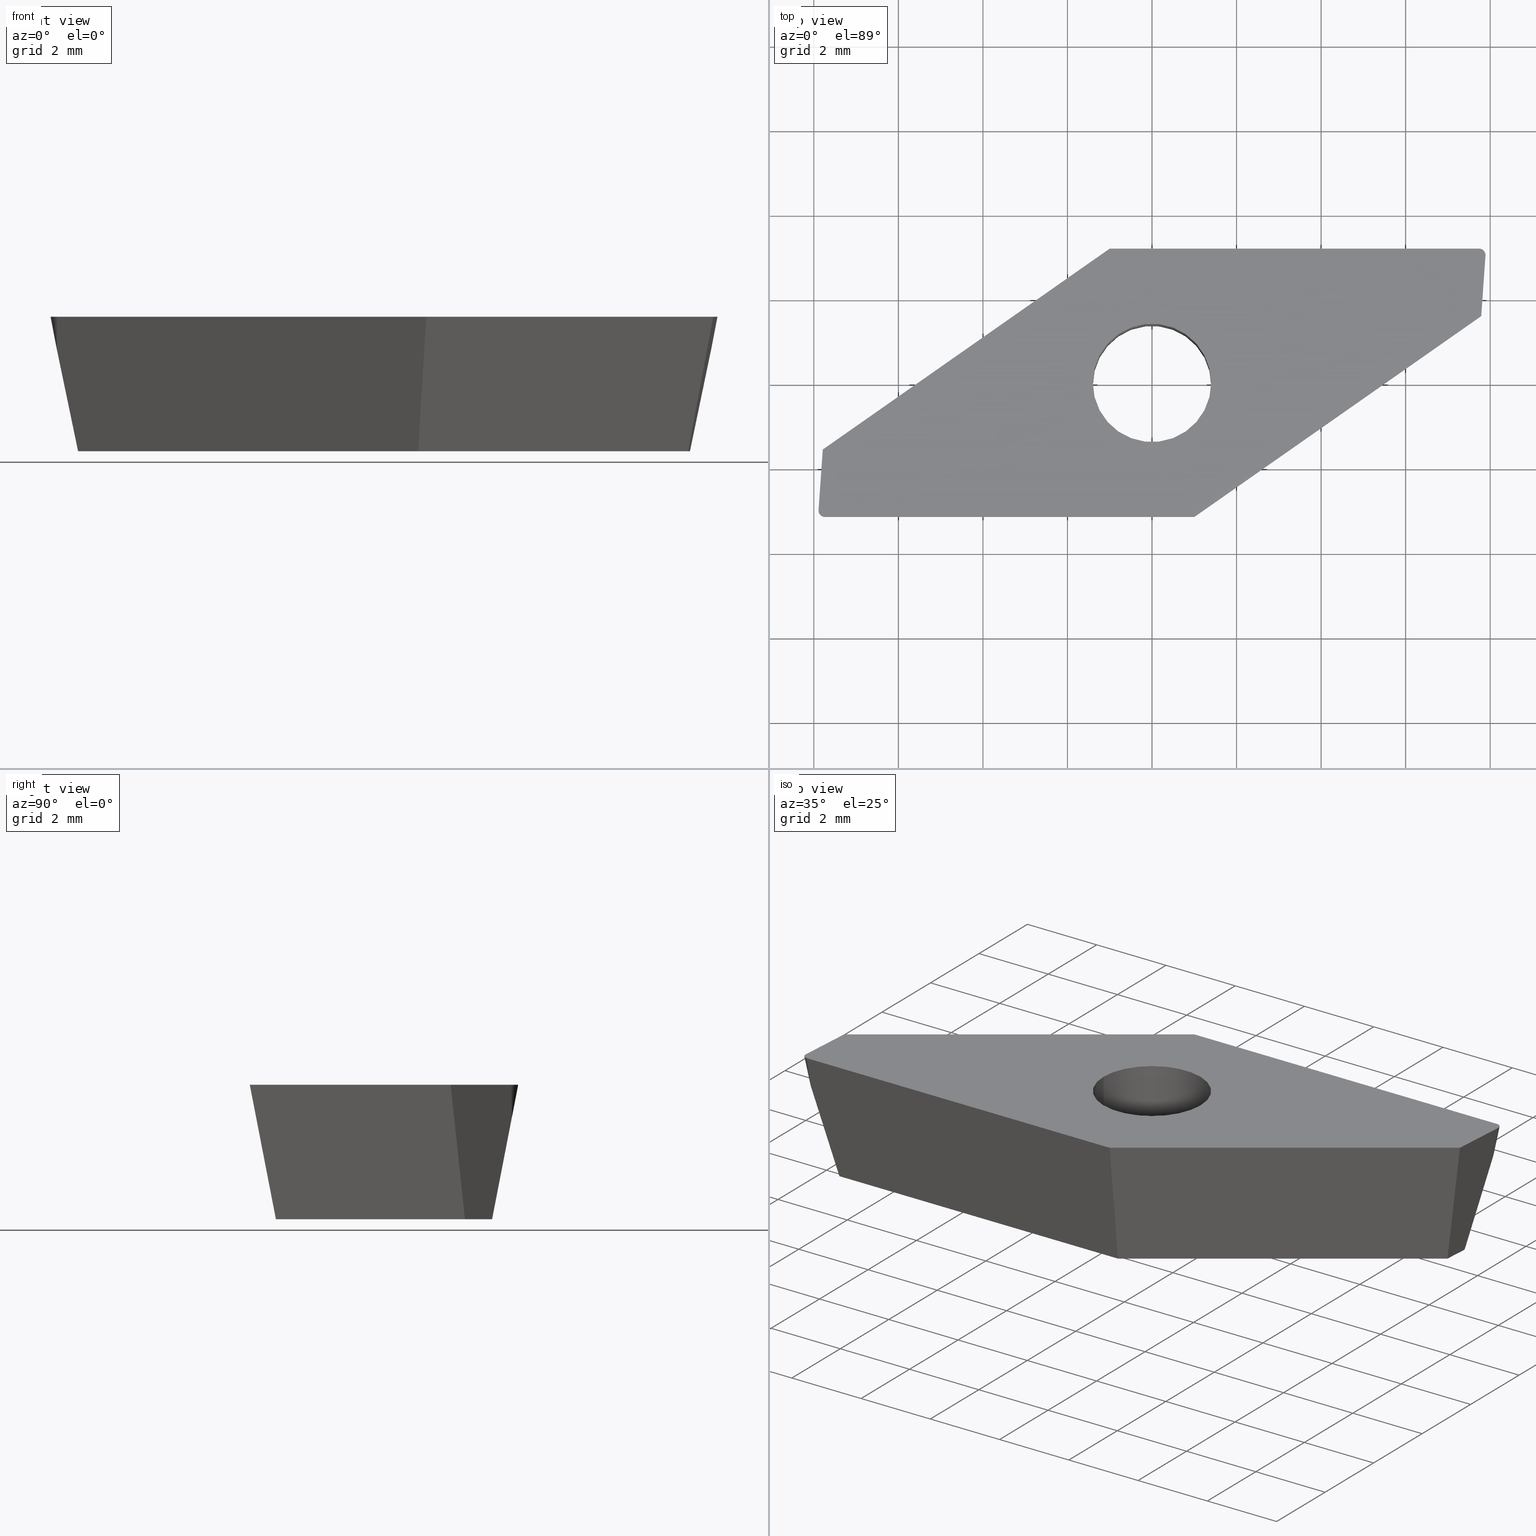
[diagram: canonical four-view strip — front | top / right | iso, engineering-drawing reading convention]
A machine part, canonical four-view strip (front | top / right | iso — engineering-drawing reading convention). The complete STEP part file that produces these views, byte-faithful:
ISO-10303-21;
HEADER;
FILE_DESCRIPTION (( 'STEP AP214' ),
    '1' );
FILE_NAME ('VP.. 1003015 .R.step',
    '2017-03-30T12:57:40',
    ( '' ),
    ( '' ),
    'SwSTEP 2.0',
    'SolidWorks 2016',
    '' );
FILE_SCHEMA (( 'AUTOMOTIVE_DESIGN' ));
ENDSEC;

DATA;
#1 = LINE ( 'NONE', #316, #15 ) ;
#2 = LINE ( 'NONE', #360, #9 ) ;
#3 = CYLINDRICAL_SURFACE ( 'NONE', #445, 1.399999999999999900 ) ;
#4 = APPLICATION_CONTEXT ( 'automotive_design' ) ;
#5 = PRODUCT_CONTEXT ( 'NONE', #34, 'mechanical' ) ;
#6 = CIRCLE ( 'NONE', #282, 0.1500000000000008300 ) ;
#7 = PRESENTATION_STYLE_ASSIGNMENT (( #46 ) ) ;
#8 = LINE ( 'NONE', #431, #12 ) ;
#9 = VECTOR ( 'NONE', #76, 1000.000000000000100 ) ;
#10 = AXIS2_PLACEMENT_3D ( 'NONE', #63, #90, #225 ) ;
#11 = DIRECTION ( 'NONE',  ( -0.0000000000000000000, -0.0000000000000000000, 1.000000000000000000 ) ) ;
#12 = VECTOR ( 'NONE', #300, 1000.000000000000000 ) ;
#13 = APPLICATION_PROTOCOL_DEFINITION ( 'draft international standard', 'automotive_design', 1998, #34 ) ;
#14 = APPLICATION_PROTOCOL_DEFINITION ( 'draft international standard', 'automotive_design', 1998, #27 ) ;
#15 = VECTOR ( 'NONE', #371, 1000.000000000000100 ) ;
#16 = FACE_OUTER_BOUND ( 'NONE', #101, .T. ) ;
#17 = ADVANCED_FACE ( 'NONE', ( #133 ), #117, .T. ) ;
#18 = PRODUCT_DEFINITION_FORMATION_WITH_SPECIFIED_SOURCE ( 'ANY', '', #284, .NOT_KNOWN. ) ;
#19 = ORIENTED_EDGE ( 'NONE', *, *, #438, .F. ) ;
#20 = FACE_OUTER_BOUND ( 'NONE', #283, .T. ) ;
#21 = EDGE_LOOP ( 'NONE', ( #260, #263, #265, #269, #271 ) ) ;
#22 = AXIS2_PLACEMENT_3D ( 'NONE', #272, #264, #262 ) ;
#23 = PLANE ( 'NONE',  #328 ) ;
#24 = UNCERTAINTY_MEASURE_WITH_UNIT (LENGTH_MEASURE( 1.000000000000000100E-005 ), #62, 'distance_accuracy_value', 'NONE');
#25 = DIRECTION ( 'NONE',  ( 0.0000000000000000000, 0.0000000000000000000, -1.000000000000000000 ) ) ;
#26 = ORIENTED_EDGE ( 'NONE', *, *, #408, .T. ) ;
#27 = APPLICATION_CONTEXT ( 'automotive_design' ) ;
#28 = PRODUCT_CONTEXT ( 'NONE', #30, 'mechanical' ) ;
#29 = APPLICATION_PROTOCOL_DEFINITION ( 'draft international standard', 'automotive_design', 1998, #30 ) ;
#30 = APPLICATION_CONTEXT ( 'automotive_design' ) ;
#31 = EDGE_CURVE ( 'NONE', #390, #176, #122, .T. ) ;
#32 = CIRCLE ( 'NONE', #10, 0.1500000000000008300 ) ;
#33 = DIRECTION ( 'NONE',  ( -0.8191520442889950200, -0.5735764363510415000, 0.0000000000000000000 ) ) ;
#34 = APPLICATION_CONTEXT ( 'automotive_design' ) ;
#35 = DIRECTION ( 'NONE',  ( 1.000000000000000000, 0.0000000000000000000, 0.0000000000000000000 ) ) ;
#36 = CIRCLE ( 'NONE', #429, 1.399999999999999900 ) ;
#37 = DIRECTION ( 'NONE',  ( 0.0000000000000000000, 0.0000000000000000000, 1.000000000000000000 ) ) ;
#38 = CARTESIAN_POINT ( 'NONE',  ( -1.399999999999999900, 1.714505518806294100E-016, -3.180000000000000200 ) ) ;
#39 = FACE_OUTER_BOUND ( 'NONE', #230, .T. ) ;
#40 = DIRECTION ( 'NONE',  ( 1.000000000000000000, 0.0000000000000000000, 0.0000000000000000000 ) ) ;
#41 = DIRECTION ( 'NONE',  ( 0.0000000000000000000, 0.0000000000000000000, 1.000000000000000000 ) ) ;
#42 = LINE ( 'NONE', #268, #119 ) ;
#43 = CARTESIAN_POINT ( 'NONE',  ( -0.8061782088420828000, 2.556870616942053400, -3.180000000000000200 ) ) ;
#44 = CARTESIAN_POINT ( 'NONE',  ( 7.739144693496298200, 3.025000000000000800, 0.0000000000000000000 ) ) ;
#45 = FILL_AREA_STYLE_COLOUR ( '', #254 ) ;
#46 = SURFACE_STYLE_USAGE ( .BOTH. , #48 ) ;
#47 = CONICAL_SURFACE ( 'NONE', #374, 0.1499999999999999700, 0.1919862177193767100 ) ;
#48 = SURFACE_SIDE_STYLE ('',( #124 ) ) ;
#49 = FACE_OUTER_BOUND ( 'NONE', #295, .T. ) ;
#50 = LINE ( 'NONE', #376, #51 ) ;
#51 = VECTOR ( 'NONE', #409, 1000.000000000000000 ) ;
#52 = CARTESIAN_POINT ( 'NONE',  ( -7.739144693496300000, -3.025000000000000800, 0.0000000000000000000 ) ) ;
#53 = FACE_BOUND ( 'NONE', #270, .T. ) ;
#54 = MANIFOLD_SOLID_BREP ( 'Schnitt-Linear austragen1', #339 ) ;
#55 = FILL_AREA_STYLE ('',( #45 ) ) ;
#56 = FACE_BOUND ( 'NONE', #222, .T. ) ;
#57 = DIRECTION ( 'NONE',  ( -0.0000000000000000000, -0.0000000000000000000, 1.000000000000000000 ) ) ;
#58 = FACE_OUTER_BOUND ( 'NONE', #404, .T. ) ;
#59 = DIRECTION ( 'NONE',  ( -0.06005326349153970700, 0.1904646183547176200, 0.9798555172570124800 ) ) ;
#60 =( NAMED_UNIT ( * ) SI_UNIT ( $, .STERADIAN. ) SOLID_ANGLE_UNIT ( ) );
#61 =( NAMED_UNIT ( * ) PLANE_ANGLE_UNIT ( ) SI_UNIT ( $, .RADIAN. ) );
#62 =( LENGTH_UNIT ( ) NAMED_UNIT ( * ) SI_UNIT ( .MILLI., .METRE. ) );
#63 = CARTESIAN_POINT ( 'NONE',  ( -7.739144693496300000, -3.025000000000000800, 0.0000000000000000000 ) ) ;
#64 = CARTESIAN_POINT ( 'NONE',  ( 7.237137390861797700, 2.556870616942054300, -3.180000000000000200 ) ) ;
#65 = VECTOR ( 'NONE', #74, 1000.000000000000000 ) ;
#66 = DIRECTION ( 'NONE',  ( 1.000000000000000000, 0.0000000000000000000, 0.0000000000000000000 ) ) ;
#67 =( NAMED_UNIT ( * ) PLANE_ANGLE_UNIT ( ) SI_UNIT ( $, .RADIAN. ) );
#68 =( LENGTH_UNIT ( ) NAMED_UNIT ( * ) SI_UNIT ( .MILLI., .METRE. ) );
#69 =( GEOMETRIC_REPRESENTATION_CONTEXT ( 3 ) GLOBAL_UNCERTAINTY_ASSIGNED_CONTEXT ( ( #354 ) ) GLOBAL_UNIT_ASSIGNED_CONTEXT ( ( #68, #67, #70 ) ) REPRESENTATION_CONTEXT ( 'NONE', 'WORKASPACE' ) );
#70 =( NAMED_UNIT ( * ) SI_UNIT ( $, .STERADIAN. ) SOLID_ANGLE_UNIT ( ) );
#71 = EDGE_CURVE ( 'NONE', #286, #121, #8, .T. ) ;
#72 = EDGE_LOOP ( 'NONE', ( #395, #183, #185 ) ) ;
#73 = DIRECTION ( 'NONE',  ( 0.0000000000000000000, 0.1908089953765452800, -0.9816271834476639800 ) ) ;
#74 = DIRECTION ( 'NONE',  ( 0.1832382521941806600, -0.1036712150141735900, 0.9775868360970839700 ) ) ;
#75 = CARTESIAN_POINT ( 'NONE',  ( 1.399999999999999900, 0.0000000000000000000, 0.0000000000000000000 ) ) ;
#76 = DIRECTION ( 'NONE',  ( 0.06005326349153969300, -0.1904646183547176200, 0.9798555172570124800 ) ) ;
#77 = CARTESIAN_POINT ( 'NONE',  ( 0.0000000000000000000, 0.0000000000000000000, 0.0000000000000000000 ) ) ;
#78 = EDGE_CURVE ( 'NONE', #137, #145, #129, .T. ) ;
#79 = ORIENTED_EDGE ( 'NONE', *, *, #199, .T. ) ;
#80 = FACE_OUTER_BOUND ( 'NONE', #21, .T. ) ;
#81 = CARTESIAN_POINT ( 'NONE',  ( 1.399999999999999900, 0.0000000000000000000, -3.180000000000000200 ) ) ;
#82 = CARTESIAN_POINT ( 'NONE',  ( 7.788289079147451100, 1.577459403657729400, 3.148184459698170000E-018 ) ) ;
#83 = DIRECTION ( 'NONE',  ( 0.0000000000000000000, 0.0000000000000000000, 1.000000000000000000 ) ) ;
#84 = ADVANCED_FACE ( 'NONE', ( #58 ), #47, .T. ) ;
#85 = CARTESIAN_POINT ( 'NONE',  ( 0.0000000000000000000, 0.0000000000000000000, 0.0000000000000000000 ) ) ;
#86 = FACE_OUTER_BOUND ( 'NONE', #267, .T. ) ;
#87 = DIRECTION ( 'NONE',  ( 1.000000000000000000, 0.0000000000000000000, 0.0000000000000000000 ) ) ;
#88 = CARTESIAN_POINT ( 'NONE',  ( 0.0000000000000000000, 0.0000000000000000000, 0.0000000000000000000 ) ) ;
#89 = FACE_OUTER_BOUND ( 'NONE', #138, .T. ) ;
#90 = DIRECTION ( 'NONE',  ( -0.0000000000000000000, -0.0000000000000000000, 1.000000000000000000 ) ) ;
#91 = STYLED_ITEM ( 'NONE', ( #7 ), #307 ) ;
#92 = CYLINDRICAL_SURFACE ( 'NONE', #402, 1.399999999999999900 ) ;
#93 = CARTESIAN_POINT ( 'NONE',  ( -7.900000000000002100, -3.175000000000000700, 0.0000000000000000000 ) ) ;
#94 = ORIENTED_EDGE ( 'NONE', *, *, #430, .F. ) ;
#95 = APPLICATION_PROTOCOL_DEFINITION ( 'draft international standard', 'automotive_design', 1998, #4 ) ;
#96 = ORIENTED_EDGE ( 'NONE', *, *, #427, .T. ) ;
#97 = ORIENTED_EDGE ( 'NONE', *, *, #434, .T. ) ;
#98 = CARTESIAN_POINT ( 'NONE',  ( 7.433744630409206500, 2.083801351424741500, -3.180000000000000200 ) ) ;
#99 = DIRECTION ( 'NONE',  ( 1.000000000000000000, 9.744461978823350000E-017, 0.0000000000000000000 ) ) ;
#100 = DIRECTION ( 'NONE',  ( 0.8191520442889952400, 0.5735764363510412700, -0.0000000000000000000 ) ) ;
#101 = EDGE_LOOP ( 'NONE', ( #79, #202, #207, #19, #209 ) ) ;
#102 = DIRECTION ( 'NONE',  ( 1.000000000000000000, 0.0000000000000000000, 0.0000000000000000000 ) ) ;
#103 = DIRECTION ( 'NONE',  ( 0.06975647374412544100, 0.9975640502598242000, -0.0000000000000000000 ) ) ;
#104 = CARTESIAN_POINT ( 'NONE',  ( -7.889144693496301200, -3.025000000000000800, 0.0000000000000000000 ) ) ;
#105 = DIRECTION ( 'NONE',  ( -0.0000000000000000000, -0.0000000000000000000, 1.000000000000000000 ) ) ;
#106 = CARTESIAN_POINT ( 'NONE',  ( 7.900000000000000400, 3.175000000000000700, 0.0000000000000000000 ) ) ;
#107 = CARTESIAN_POINT ( 'NONE',  ( 0.0000000000000000000, 0.0000000000000000000, -3.180000000000000200 ) ) ;
#108 = DIRECTION ( 'NONE',  ( 0.1903441942538345300, -0.01331016267612693300, 0.9816271834476638600 ) ) ;
#109 = CARTESIAN_POINT ( 'NONE',  ( 7.739144693496297300, 3.025000000000000800, -0.7716831023955452700 ) ) ;
#110 = AXIS2_PLACEMENT_3D ( 'NONE', #85, #83, #66 ) ;
#111 = DIRECTION ( 'NONE',  ( 1.000000000000000000, 0.0000000000000000000, 0.0000000000000000000 ) ) ;
#112 = EDGE_CURVE ( 'NONE', #357, #140, #50, .T. ) ;
#113 = ADVANCED_FACE ( 'NONE', ( #56, #49 ), #349, .F. ) ;
#114 = PRESENTATION_STYLE_ASSIGNMENT (( #416 ) ) ;
#115 = CARTESIAN_POINT ( 'NONE',  ( 7.788289079147451100, 1.577459403657729400, 0.0000000000000000000 ) ) ;
#116 = DIRECTION ( 'NONE',  ( -0.8191520442889951300, -0.5735764363510415000, -0.0000000000000000000 ) ) ;
#117 = CONICAL_SURFACE ( 'NONE', #340, 0.1500000000000008300, 0.1919862177193767100 ) ;
#118 = AXIS2_PLACEMENT_3D ( 'NONE', #88, #37, #35 ) ;
#119 = VECTOR ( 'NONE', #152, 1000.000000000000100 ) ;
#120 = DIRECTION ( 'NONE',  ( 0.0000000000000000000, 0.1908089953765452800, 0.9816271834476639800 ) ) ;
#121 = VERTEX_POINT ( 'NONE', #422 ) ;
#122 = LINE ( 'NONE', #98, #128 ) ;
#123 = PLANE ( 'NONE',  #403 ) ;
#124 = SURFACE_STYLE_FILL_AREA ( #55 ) ;
#125 = DIRECTION ( 'NONE',  ( 0.0000000000000000000, 0.0000000000000000000, 1.000000000000000000 ) ) ;
#126 = CARTESIAN_POINT ( 'NONE',  ( 1.001073654690762600, -2.556870616942053400, -3.180000000000000200 ) ) ;
#127 = DIRECTION ( 'NONE',  ( -1.000000000000000000, -9.744461978823348800E-017, -0.0000000000000000000 ) ) ;
#128 = VECTOR ( 'NONE', #330, 1000.000000000000000 ) ;
#129 = CIRCLE ( 'NONE', #353, 1.399999999999999900 ) ;
#130 = DIRECTION ( 'NONE',  ( 1.000000000000000000, 0.0000000000000000000, 0.0000000000000000000 ) ) ;
#131 = SURFACE_STYLE_FILL_AREA ( #392 ) ;
#132 = CARTESIAN_POINT ( 'NONE',  ( 0.0000000000000000000, 0.0000000000000000000, -3.180000000000000200 ) ) ;
#133 = FACE_OUTER_BOUND ( 'NONE', #72, .T. ) ;
#134 = DIRECTION ( 'NONE',  ( -0.0000000000000000000, -0.0000000000000000000, 1.000000000000000000 ) ) ;
#135 = DIRECTION ( 'NONE',  ( -0.1832382521941805800, 0.1036712150141736000, 0.9775868360970839700 ) ) ;
#136 = CARTESIAN_POINT ( 'NONE',  ( -7.739144693496299100, -3.025000000000000800, -0.7716831023955449400 ) ) ;
#137 = VERTEX_POINT ( 'NONE', #213 ) ;
#138 = EDGE_LOOP ( 'NONE', ( #331, #320, #342 ) ) ;
#139 = DIRECTION ( 'NONE',  ( 1.859331000664225100E-017, -0.1908089953765452500, -0.9816271834476638600 ) ) ;
#140 = VERTEX_POINT ( 'NONE', #43 ) ;
#141 = CARTESIAN_POINT ( 'NONE',  ( 7.739144693496298200, 3.175000000000000700, 5.764875297616103600E-018 ) ) ;
#142 = DIRECTION ( 'NONE',  ( -0.9792359889651950400, 0.06847485084868740200, -0.1908089953765452800 ) ) ;
#143 = DIRECTION ( 'NONE',  ( -0.5630382217072211800, 0.8041019140508022200, -0.1908089953765452500 ) ) ;
#144 = DIRECTION ( 'NONE',  ( 0.0000000000000000000, 0.0000000000000000000, -1.000000000000000000 ) ) ;
#145 = VERTEX_POINT ( 'NONE', #75 ) ;
#146 = CARTESIAN_POINT ( 'NONE',  ( 0.0000000000000000000, 0.0000000000000000000, -3.180000000000000200 ) ) ;
#147 = PRODUCT_RELATED_PRODUCT_CATEGORY ( 'part', '', ( #284 ) ) ;
#148 = CARTESIAN_POINT ( 'NONE',  ( 0.0000000000000000000, 0.0000000000000000000, 0.0000000000000000000 ) ) ;
#149 = CARTESIAN_POINT ( 'NONE',  ( -7.433744630409207400, -2.083801351424743800, -3.180000000000000200 ) ) ;
#150 = ADVANCED_FACE ( 'NONE', ( #20 ), #293, .T. ) ;
#151 = CARTESIAN_POINT ( 'NONE',  ( -1.001073654690764600, 3.174999999999999800, 0.0000000000000000000 ) ) ;
#152 = DIRECTION ( 'NONE',  ( -0.06975647374412608000, -0.9975640502598242000, 0.0000000000000000000 ) ) ;
#153 = ADVANCED_FACE ( 'NONE', ( #53, #39 ), #327, .T. ) ;
#154 = CARTESIAN_POINT ( 'NONE',  ( 7.788289079147451100, 1.577459403657729400, 0.0000000000000000000 ) ) ;
#155 = DIRECTION ( 'NONE',  ( -9.565428766485213700E-017, 0.9816271834476639800, -0.1908089953765452800 ) ) ;
#156 = PLANE ( 'NONE',  #171 ) ;
#157 = AXIS2_PLACEMENT_3D ( 'NONE', #52, #388, #291 ) ;
#158 = CARTESIAN_POINT ( 'NONE',  ( -7.900000000000002100, -3.175000000000000700, 0.0000000000000000000 ) ) ;
#159 = DIRECTION ( 'NONE',  ( -0.8191520442889950200, -0.5735764363510415000, 0.0000000000000000000 ) ) ;
#160 = CIRCLE ( 'NONE', #110, 1.399999999999999900 ) ;
#161 = VERTEX_POINT ( 'NONE', #38 ) ;
#162 = EDGE_CURVE ( 'NONE', #180, #161, #36, .T. ) ;
#163 = FACE_OUTER_BOUND ( 'NONE', #174, .T. ) ;
#164 = AXIS2_PLACEMENT_3D ( 'NONE', #77, #41, #40 ) ;
#165 = CARTESIAN_POINT ( 'NONE',  ( 7.888779301035271800, 3.014536528938381600, -1.291725244562808000E-016 ) ) ;
#166 = CARTESIAN_POINT ( 'NONE',  ( 7.788289079147451100, 1.577459403657729400, 0.0000000000000000000 ) ) ;
#167 = DIRECTION ( 'NONE',  ( -0.06975647374412606600, -0.9975640502598242000, -0.0000000000000000000 ) ) ;
#168 = CARTESIAN_POINT ( 'NONE',  ( 0.0000000000000000000, 0.0000000000000000000, -3.180000000000000200 ) ) ;
#169 = DIRECTION ( 'NONE',  ( 0.8191520442889951300, 0.5735764363510412700, 0.0000000000000000000 ) ) ;
#170 = DIRECTION ( 'NONE',  ( 0.5630382217072209500, -0.8041019140508023400, -0.1908089953765452500 ) ) ;
#171 = AXIS2_PLACEMENT_3D ( 'NONE', #166, #170, #169 ) ;
#172 = CARTESIAN_POINT ( 'NONE',  ( -1.001073654690764600, 3.174999999999999800, 0.0000000000000000000 ) ) ;
#173 = CARTESIAN_POINT ( 'NONE',  ( 1.399999999999999900, 0.0000000000000000000, -3.180000000000000200 ) ) ;
#174 = EDGE_LOOP ( 'NONE', ( #336, #358, #366, #378 ) ) ;
#175 = EDGE_CURVE ( 'NONE', #299, #286, #32, .T. ) ;
#176 = VERTEX_POINT ( 'NONE', #192 ) ;
#177 = EDGE_LOOP ( 'NONE', ( #253, #256, #258, #259 ) ) ;
#178 = ADVANCED_FACE ( 'NONE', ( #80 ), #23, .T. ) ;
#179 = ADVANCED_FACE ( 'NONE', ( #16 ), #198, .T. ) ;
#180 = VERTEX_POINT ( 'NONE', #81 ) ;
#181 = DIRECTION ( 'NONE',  ( -0.1912579077465619300, 0.0000000000000000000, -0.9815398171874677400 ) ) ;
#182 = DIRECTION ( 'NONE',  ( 0.9792359889651950400, -0.06847485084868677700, -0.1908089953765452500 ) ) ;
#183 = ORIENTED_EDGE ( 'NONE', *, *, #344, .T. ) ;
#184 = ORIENTED_EDGE ( 'NONE', *, *, #398, .F. ) ;
#185 = ORIENTED_EDGE ( 'NONE', *, *, #243, .F. ) ;
#186 = PRODUCT_DEFINITION_SHAPE ( 'NONE', 'NONE',  #441 ) ;
#187 = LINE ( 'NONE', #82, #65 ) ;
#188 = CARTESIAN_POINT ( 'NONE',  ( -7.788289079147451900, -1.577459403657731600, 0.0000000000000000000 ) ) ;
#189 = CARTESIAN_POINT ( 'NONE',  ( 7.900000000000000400, 3.175000000000000700, 0.0000000000000000000 ) ) ;
#190 = VECTOR ( 'NONE', #103, 1000.000000000000200 ) ;
#191 = PLANE ( 'NONE',  #364 ) ;
#192 = CARTESIAN_POINT ( 'NONE',  ( 7.192231910145610000, 1.914692324122640600, -3.180000000000000200 ) ) ;
#193 = DIRECTION ( 'NONE',  ( 0.2004640746510997800, 0.1869357738407769500, 0.9617011860410842300 ) ) ;
#194 = DIRECTION ( 'NONE',  ( 0.0000000000000000000, 0.0000000000000000000, 1.000000000000000000 ) ) ;
#195 = CARTESIAN_POINT ( 'NONE',  ( -7.739144693496300000, -3.025000000000000800, 0.0000000000000000000 ) ) ;
#196 = DIRECTION ( 'NONE',  ( -1.000000000000000000, 0.0000000000000000000, 0.0000000000000000000 ) ) ;
#197 = CARTESIAN_POINT ( 'NONE',  ( -7.192231910145610900, -1.914692324122642800, -3.180000000000000200 ) ) ;
#198 = PLANE ( 'NONE',  #444 ) ;
#199 = EDGE_CURVE ( 'NONE', #326, #241, #42, .T. ) ;
#200 = DIRECTION ( 'NONE',  ( 0.06975647374412545500, 0.9975640502598242000, 0.0000000000000000000 ) ) ;
#201 = CARTESIAN_POINT ( 'NONE',  ( -1.001073654690764600, 3.174999999999999800, 0.0000000000000000000 ) ) ;
#202 = ORIENTED_EDGE ( 'NONE', *, *, #414, .T. ) ;
#203 = ADVANCED_FACE ( 'NONE', ( #86 ), #3, .F. ) ;
#204 = CARTESIAN_POINT ( 'NONE',  ( -7.888779301035273600, -3.014536528938381600, 0.0000000000000000000 ) ) ;
#205 = ADVANCED_FACE ( 'NONE', ( #89 ), #436, .T. ) ;
#206 = DIRECTION ( 'NONE',  ( -1.000000000000000000, -1.734723475976797600E-014, 0.0000000000000000000 ) ) ;
#207 = ORIENTED_EDGE ( 'NONE', *, *, #236, .T. ) ;
#208 = DIRECTION ( 'NONE',  ( -1.000000000000000000, 0.0000000000000000000, -0.0000000000000000000 ) ) ;
#209 = ORIENTED_EDGE ( 'NONE', *, *, #427, .F. ) ;
#210 = PRESENTATION_LAYER_ASSIGNMENT (  '', '', ( #91 ) ) ;
#211 = SHAPE_DEFINITION_REPRESENTATION ( #381, #307 ) ;
#212 = ORIENTED_EDGE ( 'NONE', *, *, #323, .F. ) ;
#213 = CARTESIAN_POINT ( 'NONE',  ( -1.399999999999999900, 1.714505518806294100E-016, 0.0000000000000000000 ) ) ;
#214 = CARTESIAN_POINT ( 'NONE',  ( 0.8061782088420801400, -2.556870616942053400, -3.180000000000000200 ) ) ;
#215 = PRODUCT_DEFINITION_FORMATION_WITH_SPECIFIED_SOURCE ( 'ANY', '', #442, .NOT_KNOWN. ) ;
#216 = EDGE_LOOP ( 'NONE', ( #242, #246, #247, #249, #250 ) ) ;
#217 = UNCERTAINTY_MEASURE_WITH_UNIT (LENGTH_MEASURE( 1.000000000000000100E-005 ), #410, 'distance_accuracy_value', 'NONE');
#218 = CARTESIAN_POINT ( 'NONE',  ( -7.739144693496300900, -3.175000000000000700, 5.764875297616103600E-018 ) ) ;
#219 = ORIENTED_EDGE ( 'NONE', *, *, #78, .T. ) ;
#220 = ORIENTED_EDGE ( 'NONE', *, *, #319, .F. ) ;
#221 = DIRECTION ( 'NONE',  ( -1.859331000664225100E-017, 0.1908089953765452500, -0.9816271834476638600 ) ) ;
#222 = EDGE_LOOP ( 'NONE', ( #303, #304 ) ) ;
#223 = DIRECTION ( 'NONE',  ( 9.565428766485213700E-017, -0.9816271834476639800, -0.1908089953765452800 ) ) ;
#224 = VECTOR ( 'NONE', #108, 1000.000000000000100 ) ;
#225 = DIRECTION ( 'NONE',  ( -1.000000000000000000, 0.0000000000000000000, 0.0000000000000000000 ) ) ;
#226 = CARTESIAN_POINT ( 'NONE',  ( 7.283376349052109500, 3.218118526079754900, -3.180000000000000200 ) ) ;
#227 = AXIS2_PLACEMENT_3D ( 'NONE', #44, #285, #281 ) ;
#228 = LINE ( 'NONE', #106, #190 ) ;
#229 = DIRECTION ( 'NONE',  ( -0.1908089953765452800, 0.0000000000000000000, 0.9816271834476639800 ) ) ;
#230 = EDGE_LOOP ( 'NONE', ( #278, #288, #290, #292, #298, #301 ) ) ;
#231 = DIRECTION ( 'NONE',  ( -0.2004640746510998900, -0.1869357738407769500, 0.9617011860410842300 ) ) ;
#232 = VERTEX_POINT ( 'NONE', #318 ) ;
#233 = ORIENTED_EDGE ( 'NONE', *, *, #424, .T. ) ;
#234 = EDGE_CURVE ( 'NONE', #390, #121, #2, .T. ) ;
#235 = ORIENTED_EDGE ( 'NONE', *, *, #420, .F. ) ;
#236 = EDGE_CURVE ( 'NONE', #322, #372, #1, .T. ) ;
#237 = ORIENTED_EDGE ( 'NONE', *, *, #112, .T. ) ;
#238 = LINE ( 'NONE', #126, #276 ) ;
#239 = CARTESIAN_POINT ( 'NONE',  ( -7.900000000000002100, -3.175000000000000700, 0.0000000000000000000 ) ) ;
#240 = ORIENTED_EDGE ( 'NONE', *, *, #319, .T. ) ;
#241 = VERTEX_POINT ( 'NONE', #401 ) ;
#242 = ORIENTED_EDGE ( 'NONE', *, *, #418, .T. ) ;
#243 = EDGE_CURVE ( 'NONE', #372, #299, #6, .T. ) ;
#244 = ORIENTED_EDGE ( 'NONE', *, *, #428, .F. ) ;
#245 = DIRECTION ( 'NONE',  ( -0.0000000000000000000, -0.0000000000000000000, 1.000000000000000000 ) ) ;
#246 = ORIENTED_EDGE ( 'NONE', *, *, #420, .T. ) ;
#247 = ORIENTED_EDGE ( 'NONE', *, *, #443, .T. ) ;
#248 = FILL_AREA_STYLE_COLOUR ( '', #350 ) ;
#249 = ORIENTED_EDGE ( 'NONE', *, *, #446, .F. ) ;
#250 = ORIENTED_EDGE ( 'NONE', *, *, #449, .F. ) ;
#251 = FACE_OUTER_BOUND ( 'NONE', #177, .T. ) ;
#252 = AXIS2_PLACEMENT_3D ( 'NONE', #297, #143, #33 ) ;
#253 = ORIENTED_EDGE ( 'NONE', *, *, #399, .F. ) ;
#254 = COLOUR_RGB ( '',0.7960784313725489700, 0.8235294117647058400, 0.9372549019607843100 ) ;
#255 = CARTESIAN_POINT ( 'NONE',  ( -1.399999999999999900, 1.714505518806294100E-016, -3.180000000000000200 ) ) ;
#256 = ORIENTED_EDGE ( 'NONE', *, *, #234, .F. ) ;
#257 = CARTESIAN_POINT ( 'NONE',  ( 7.739144693496298200, 3.175000000000000700, 0.0000000000000000000 ) ) ;
#258 = ORIENTED_EDGE ( 'NONE', *, *, #31, .T. ) ;
#259 = ORIENTED_EDGE ( 'NONE', *, *, #449, .T. ) ;
#260 = ORIENTED_EDGE ( 'NONE', *, *, #71, .F. ) ;
#261 = VERTEX_POINT ( 'NONE', #305 ) ;
#262 = DIRECTION ( 'NONE',  ( 1.000000000000000000, 0.0000000000000000000, 0.0000000000000000000 ) ) ;
#263 = ORIENTED_EDGE ( 'NONE', *, *, #389, .T. ) ;
#264 = DIRECTION ( 'NONE',  ( 0.0000000000000000000, 0.0000000000000000000, 1.000000000000000000 ) ) ;
#265 = ORIENTED_EDGE ( 'NONE', *, *, #414, .F. ) ;
#266 = VECTOR ( 'NONE', #167, 1000.000000000000000 ) ;
#267 = EDGE_LOOP ( 'NONE', ( #184, #26, #219, #244 ) ) ;
#268 = CARTESIAN_POINT ( 'NONE',  ( -7.283376349052111300, -3.218118526079755300, -3.180000000000000200 ) ) ;
#269 = ORIENTED_EDGE ( 'NONE', *, *, #440, .T. ) ;
#270 = EDGE_LOOP ( 'NONE', ( #274, #275 ) ) ;
#271 = ORIENTED_EDGE ( 'NONE', *, *, #234, .T. ) ;
#272 = CARTESIAN_POINT ( 'NONE',  ( 0.0000000000000000000, 0.0000000000000000000, -3.180000000000000200 ) ) ;
#273 = CARTESIAN_POINT ( 'NONE',  ( 7.900000000000000400, 3.175000000000000700, 0.0000000000000000000 ) ) ;
#274 = ORIENTED_EDGE ( 'NONE', *, *, #162, .T. ) ;
#275 = ORIENTED_EDGE ( 'NONE', *, *, #398, .T. ) ;
#276 = VECTOR ( 'NONE', #99, 1000.000000000000000 ) ;
#277 = VECTOR ( 'NONE', #159, 1000.000000000000000 ) ;
#278 = ORIENTED_EDGE ( 'NONE', *, *, #112, .F. ) ;
#279 = LINE ( 'NONE', #158, #266 ) ;
#280 = VECTOR ( 'NONE', #127, 1000.000000000000000 ) ;
#281 = DIRECTION ( 'NONE',  ( -1.000000000000000000, 0.0000000000000000000, 0.0000000000000000000 ) ) ;
#282 = AXIS2_PLACEMENT_3D ( 'NONE', #195, #437, #206 ) ;
#283 = EDGE_LOOP ( 'NONE', ( #212, #220, #97, #96 ) ) ;
#284 = PRODUCT ( 'VP.. 1003015 .R', 'VP.. 1003015 .R', '', ( #28 ) ) ;
#285 = DIRECTION ( 'NONE',  ( -0.0000000000000000000, -0.0000000000000000000, 1.000000000000000000 ) ) ;
#286 = VERTEX_POINT ( 'NONE', #400 ) ;
#287 = SURFACE_SIDE_STYLE ('',( #131 ) ) ;
#288 = ORIENTED_EDGE ( 'NONE', *, *, #418, .F. ) ;
#289 = LINE ( 'NONE', #149, #277 ) ;
#290 = ORIENTED_EDGE ( 'NONE', *, *, #31, .F. ) ;
#291 = DIRECTION ( 'NONE',  ( -1.000000000000000000, 0.0000000000000000000, 0.0000000000000000000 ) ) ;
#292 = ORIENTED_EDGE ( 'NONE', *, *, #440, .F. ) ;
#293 = PLANE ( 'NONE',  #252 ) ;
#294 = STYLED_ITEM ( 'NONE', ( #114 ), #54 ) ;
#295 = EDGE_LOOP ( 'NONE', ( #306, #308, #309, #310, #312, #314, #348, #352, #333 ) ) ;
#296 = VECTOR ( 'NONE', #134, 1000.000000000000000 ) ;
#297 = CARTESIAN_POINT ( 'NONE',  ( -7.788289079147451900, -1.577459403657731600, 0.0000000000000000000 ) ) ;
#298 = ORIENTED_EDGE ( 'NONE', *, *, #199, .F. ) ;
#299 = VERTEX_POINT ( 'NONE', #335 ) ;
#300 = DIRECTION ( 'NONE',  ( 1.000000000000000000, 9.744461978823348800E-017, -0.0000000000000000000 ) ) ;
#301 = ORIENTED_EDGE ( 'NONE', *, *, #434, .F. ) ;
#302 = LINE ( 'NONE', #165, #224 ) ;
#303 = ORIENTED_EDGE ( 'NONE', *, *, #448, .F. ) ;
#304 = ORIENTED_EDGE ( 'NONE', *, *, #78, .F. ) ;
#305 = CARTESIAN_POINT ( 'NONE',  ( -7.788289079147451900, -1.577459403657731600, 0.0000000000000000000 ) ) ;
#306 = ORIENTED_EDGE ( 'NONE', *, *, #446, .T. ) ;
#307 = ADVANCED_BREP_SHAPE_REPRESENTATION ( 'VP.. 1003015 .R', ( #54, #164 ), #69 ) ;
#308 = ORIENTED_EDGE ( 'NONE', *, *, #391, .T. ) ;
#309 = ORIENTED_EDGE ( 'NONE', *, *, #430, .T. ) ;
#310 = ORIENTED_EDGE ( 'NONE', *, *, #323, .T. ) ;
#311 = VECTOR ( 'NONE', #135, 1000.000000000000100 ) ;
#312 = ORIENTED_EDGE ( 'NONE', *, *, #438, .T. ) ;
#313 = LINE ( 'NONE', #172, #280 ) ;
#314 = ORIENTED_EDGE ( 'NONE', *, *, #243, .T. ) ;
#315 = CARTESIAN_POINT ( 'NONE',  ( -1.001073654690764600, 3.174999999999999800, 0.0000000000000000000 ) ) ;
#316 = CARTESIAN_POINT ( 'NONE',  ( -7.888779301035273600, -3.014536528938381600, -9.275010772434588700E-017 ) ) ;
#317 = VERTEX_POINT ( 'NONE', #315 ) ;
#318 = CARTESIAN_POINT ( 'NONE',  ( 7.888779301035271800, 3.014536528938381600, 0.0000000000000000000 ) ) ;
#319 = EDGE_CURVE ( 'NONE', #140, #317, #433, .T. ) ;
#320 = ORIENTED_EDGE ( 'NONE', *, *, #389, .F. ) ;
#321 = EDGE_LOOP ( 'NONE', ( #94, #233, #235, #237, #240 ) ) ;
#322 = VERTEX_POINT ( 'NONE', #136 ) ;
#323 = EDGE_CURVE ( 'NONE', #317, #261, #407, .T. ) ;
#324 = LINE ( 'NONE', #141, #345 ) ;
#325 = FACE_OUTER_BOUND ( 'NONE', #216, .T. ) ;
#326 = VERTEX_POINT ( 'NONE', #197 ) ;
#327 = PLANE ( 'NONE',  #435 ) ;
#328 = AXIS2_PLACEMENT_3D ( 'NONE', #426, #223, #73 ) ;
#329 = LINE ( 'NONE', #173, #296 ) ;
#330 = DIRECTION ( 'NONE',  ( 0.8191520442889951300, 0.5735764363510412700, 0.0000000000000000000 ) ) ;
#331 = ORIENTED_EDGE ( 'NONE', *, *, #344, .F. ) ;
#332 = VERTEX_POINT ( 'NONE', #115 ) ;
#333 = ORIENTED_EDGE ( 'NONE', *, *, #399, .T. ) ;
#334 = ORIENTED_EDGE ( 'NONE', *, *, #443, .F. ) ;
#335 = CARTESIAN_POINT ( 'NONE',  ( -7.889144693496301200, -3.025000000000000800, 0.0000000000000000000 ) ) ;
#336 = ORIENTED_EDGE ( 'NONE', *, *, #408, .F. ) ;
#337 = ORIENTED_EDGE ( 'NONE', *, *, #424, .F. ) ;
#338 = ORIENTED_EDGE ( 'NONE', *, *, #391, .F. ) ;
#339 = CLOSED_SHELL ( 'NONE', ( #203, #17, #179, #150, #380, #421, #439, #178, #153, #113, #84, #205, #447 ) ) ;
#340 = AXIS2_PLACEMENT_3D ( 'NONE', #413, #11, #412 ) ;
#341 = VECTOR ( 'NONE', #193, 1000.000000000000100 ) ;
#342 = ORIENTED_EDGE ( 'NONE', *, *, #175, .F. ) ;
#343 = VERTEX_POINT ( 'NONE', #109 ) ;
#344 = EDGE_CURVE ( 'NONE', #322, #299, #417, .T. ) ;
#345 = VECTOR ( 'NONE', #139, 1000.000000000000100 ) ;
#346 = MECHANICAL_DESIGN_GEOMETRIC_PRESENTATION_REPRESENTATION (  '', ( #91 ), #385 ) ;
#347 = VECTOR ( 'NONE', #200, 1000.000000000000100 ) ;
#348 = ORIENTED_EDGE ( 'NONE', *, *, #175, .T. ) ;
#349 = PLANE ( 'NONE',  #450 ) ;
#350 = COLOUR_RGB ( '',0.7960784313725489700, 0.8235294117647058400, 0.9372549019607843100 ) ;
#351 = PRODUCT_RELATED_PRODUCT_CATEGORY ( 'part', '', ( #442 ) ) ;
#352 = ORIENTED_EDGE ( 'NONE', *, *, #71, .T. ) ;
#353 = AXIS2_PLACEMENT_3D ( 'NONE', #423, #194, #87 ) ;
#354 = UNCERTAINTY_MEASURE_WITH_UNIT (LENGTH_MEASURE( 1.000000000000000100E-005 ), #68, 'distance_accuracy_value', 'NONE');
#355 = CARTESIAN_POINT ( 'NONE',  ( -7.788289079147451900, -1.577459403657731600, 0.0000000000000000000 ) ) ;
#356 = DIRECTION ( 'NONE',  ( -0.1912579077465619300, 0.0000000000000000000, 0.9815398171874677400 ) ) ;
#357 = VERTEX_POINT ( 'NONE', #64 ) ;
#358 = ORIENTED_EDGE ( 'NONE', *, *, #162, .F. ) ;
#359 = LINE ( 'NONE', #188, #311 ) ;
#360 = CARTESIAN_POINT ( 'NONE',  ( 1.001073654690761700, -3.174999999999999800, 4.532429341667184100E-017 ) ) ;
#361 = VERTEX_POINT ( 'NONE', #257 ) ;
#362 = VECTOR ( 'NONE', #231, 1000.000000000000100 ) ;
#363 = CARTESIAN_POINT ( 'NONE',  ( 7.739144693496298200, 3.025000000000000800, 0.0000000000000000000 ) ) ;
#364 = AXIS2_PLACEMENT_3D ( 'NONE', #189, #182, #181 ) ;
#365 = LINE ( 'NONE', #226, #347 ) ;
#366 = ORIENTED_EDGE ( 'NONE', *, *, #428, .T. ) ;
#367 = VECTOR ( 'NONE', #245, 1000.000000000000000 ) ;
#368 = LINE ( 'NONE', #239, #362 ) ;
#369 = PRODUCT_DEFINITION_CONTEXT ( 'detailed design', #4, 'design' ) ;
#370 =( GEOMETRIC_REPRESENTATION_CONTEXT ( 3 ) GLOBAL_UNCERTAINTY_ASSIGNED_CONTEXT ( ( #217 ) ) GLOBAL_UNIT_ASSIGNED_CONTEXT ( ( #410, #406, #397 ) ) REPRESENTATION_CONTEXT ( 'NONE', 'WORKASPACE' ) );
#371 = DIRECTION ( 'NONE',  ( -0.1903441942538345300, 0.01331016267612705400, 0.9816271834476638600 ) ) ;
#372 = VERTEX_POINT ( 'NONE', #204 ) ;
#373 = DIRECTION ( 'NONE',  ( -1.000000000000000000, 0.0000000000000000000, -0.0000000000000000000 ) ) ;
#374 = AXIS2_PLACEMENT_3D ( 'NONE', #363, #394, #196 ) ;
#375 = VECTOR ( 'NONE', #100, 1000.000000000000100 ) ;
#376 = CARTESIAN_POINT ( 'NONE',  ( -1.001073654690764600, 2.556870616942053400, -3.180000000000000200 ) ) ;
#377 = LINE ( 'NONE', #255, #367 ) ;
#378 = ORIENTED_EDGE ( 'NONE', *, *, #448, .T. ) ;
#379 = CIRCLE ( 'NONE', #227, 0.1499999999999999700 ) ;
#380 = ADVANCED_FACE ( 'NONE', ( #432 ), #123, .T. ) ;
#381 = PRODUCT_DEFINITION_SHAPE ( 'NONE', 'NONE',  #419 ) ;
#382 = LINE ( 'NONE', #273, #341 ) ;
#383 = LINE ( 'NONE', #218, #405 ) ;
#384 = MECHANICAL_DESIGN_GEOMETRIC_PRESENTATION_REPRESENTATION (  '', ( #294 ), #370 ) ;
#385 =( GEOMETRIC_REPRESENTATION_CONTEXT ( 3 ) GLOBAL_UNCERTAINTY_ASSIGNED_CONTEXT ( ( #24 ) ) GLOBAL_UNIT_ASSIGNED_CONTEXT ( ( #62, #61, #60 ) ) REPRESENTATION_CONTEXT ( 'NONE', 'WORKASPACE' ) );
#386 = LINE ( 'NONE', #154, #375 ) ;
#387 = PRESENTATION_LAYER_ASSIGNMENT (  '', '', ( #294 ) ) ;
#388 = DIRECTION ( 'NONE',  ( -0.0000000000000000000, -0.0000000000000000000, 1.000000000000000000 ) ) ;
#389 = EDGE_CURVE ( 'NONE', #286, #322, #383, .T. ) ;
#390 = VERTEX_POINT ( 'NONE', #214 ) ;
#391 = EDGE_CURVE ( 'NONE', #232, #361, #379, .T. ) ;
#392 = FILL_AREA_STYLE ('',( #248 ) ) ;
#393 = VECTOR ( 'NONE', #229, 999.9999999999998900 ) ;
#394 = DIRECTION ( 'NONE',  ( -0.0000000000000000000, -0.0000000000000000000, 1.000000000000000000 ) ) ;
#395 = ORIENTED_EDGE ( 'NONE', *, *, #236, .F. ) ;
#396 = VECTOR ( 'NONE', #59, 1000.000000000000100 ) ;
#397 =( NAMED_UNIT ( * ) SI_UNIT ( $, .STERADIAN. ) SOLID_ANGLE_UNIT ( ) );
#398 = EDGE_CURVE ( 'NONE', #161, #180, #415, .T. ) ;
#399 = EDGE_CURVE ( 'NONE', #121, #332, #386, .T. ) ;
#400 = CARTESIAN_POINT ( 'NONE',  ( -7.739144693496300900, -3.175000000000000700, 0.0000000000000000000 ) ) ;
#401 = CARTESIAN_POINT ( 'NONE',  ( -7.237137390861798600, -2.556870616942054300, -3.180000000000000200 ) ) ;
#402 = AXIS2_PLACEMENT_3D ( 'NONE', #168, #105, #102 ) ;
#403 = AXIS2_PLACEMENT_3D ( 'NONE', #201, #155, #120 ) ;
#404 = EDGE_LOOP ( 'NONE', ( #334, #337, #338 ) ) ;
#405 = VECTOR ( 'NONE', #221, 1000.000000000000100 ) ;
#406 =( NAMED_UNIT ( * ) PLANE_ANGLE_UNIT ( ) SI_UNIT ( $, .RADIAN. ) );
#407 = LINE ( 'NONE', #355, #425 ) ;
#408 = EDGE_CURVE ( 'NONE', #161, #137, #377, .T. ) ;
#409 = DIRECTION ( 'NONE',  ( -1.000000000000000000, -9.744461978823350000E-017, 0.0000000000000000000 ) ) ;
#410 =( LENGTH_UNIT ( ) NAMED_UNIT ( * ) SI_UNIT ( .MILLI., .METRE. ) );
#411 = PRODUCT_DEFINITION_CONTEXT ( 'detailed design', #27, 'design' ) ;
#412 = DIRECTION ( 'NONE',  ( -1.000000000000000000, 0.0000000000000000000, 0.0000000000000000000 ) ) ;
#413 = CARTESIAN_POINT ( 'NONE',  ( -7.739144693496300000, -3.025000000000000800, 0.0000000000000000000 ) ) ;
#414 = EDGE_CURVE ( 'NONE', #241, #322, #368, .T. ) ;
#415 = CIRCLE ( 'NONE', #22, 1.399999999999999900 ) ;
#416 = SURFACE_STYLE_USAGE ( .BOTH. , #287 ) ;
#417 = LINE ( 'NONE', #104, #393 ) ;
#418 = EDGE_CURVE ( 'NONE', #176, #357, #365, .T. ) ;
#419 = PRODUCT_DEFINITION ( 'UNKNOWN', '', #215, #369 ) ;
#420 = EDGE_CURVE ( 'NONE', #357, #343, #382, .T. ) ;
#421 = ADVANCED_FACE ( 'NONE', ( #325 ), #191, .T. ) ;
#422 = CARTESIAN_POINT ( 'NONE',  ( 1.001073654690762600, -3.174999999999999800, 0.0000000000000000000 ) ) ;
#423 = CARTESIAN_POINT ( 'NONE',  ( 0.0000000000000000000, 0.0000000000000000000, 0.0000000000000000000 ) ) ;
#424 = EDGE_CURVE ( 'NONE', #361, #343, #324, .T. ) ;
#425 = VECTOR ( 'NONE', #116, 1000.000000000000100 ) ;
#426 = CARTESIAN_POINT ( 'NONE',  ( 1.001073654690762600, -3.174999999999999800, 0.0000000000000000000 ) ) ;
#427 = EDGE_CURVE ( 'NONE', #326, #261, #359, .T. ) ;
#428 = EDGE_CURVE ( 'NONE', #180, #145, #329, .T. ) ;
#429 = AXIS2_PLACEMENT_3D ( 'NONE', #107, #125, #130 ) ;
#430 = EDGE_CURVE ( 'NONE', #361, #317, #313, .T. ) ;
#431 = CARTESIAN_POINT ( 'NONE',  ( 1.001073654690762600, -3.174999999999999800, 0.0000000000000000000 ) ) ;
#432 = FACE_OUTER_BOUND ( 'NONE', #321, .T. ) ;
#433 = LINE ( 'NONE', #151, #396 ) ;
#434 = EDGE_CURVE ( 'NONE', #140, #326, #289, .T. ) ;
#435 = AXIS2_PLACEMENT_3D ( 'NONE', #146, #25, #208 ) ;
#436 = CONICAL_SURFACE ( 'NONE', #157, 0.1500000000000008300, 0.1919862177193767100 ) ;
#437 = DIRECTION ( 'NONE',  ( -0.0000000000000000000, -0.0000000000000000000, 1.000000000000000000 ) ) ;
#438 = EDGE_CURVE ( 'NONE', #261, #372, #279, .T. ) ;
#439 = ADVANCED_FACE ( 'NONE', ( #251 ), #156, .T. ) ;
#440 = EDGE_CURVE ( 'NONE', #241, #390, #238, .T. ) ;
#441 = PRODUCT_DEFINITION ( 'UNKNOWN', '', #18, #411 ) ;
#442 = PRODUCT ( 'VP.. 1003015 .R', 'VP.. 1003015 .R', '', ( #5 ) ) ;
#443 = EDGE_CURVE ( 'NONE', #343, #232, #302, .T. ) ;
#444 = AXIS2_PLACEMENT_3D ( 'NONE', #93, #142, #356 ) ;
#445 = AXIS2_PLACEMENT_3D ( 'NONE', #132, #57, #111 ) ;
#446 = EDGE_CURVE ( 'NONE', #332, #232, #228, .T. ) ;
#447 = ADVANCED_FACE ( 'NONE', ( #163 ), #92, .F. ) ;
#448 = EDGE_CURVE ( 'NONE', #145, #137, #160, .T. ) ;
#449 = EDGE_CURVE ( 'NONE', #176, #332, #187, .T. ) ;
#450 = AXIS2_PLACEMENT_3D ( 'NONE', #148, #144, #373 ) ;
ENDSEC;
END-ISO-10303-21;
